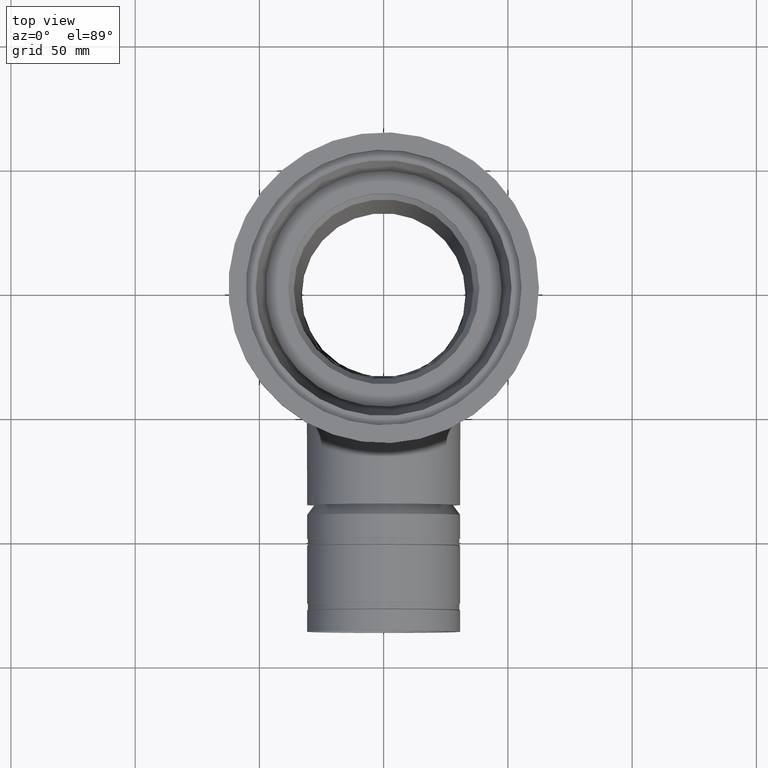
[diagram: clean part render]
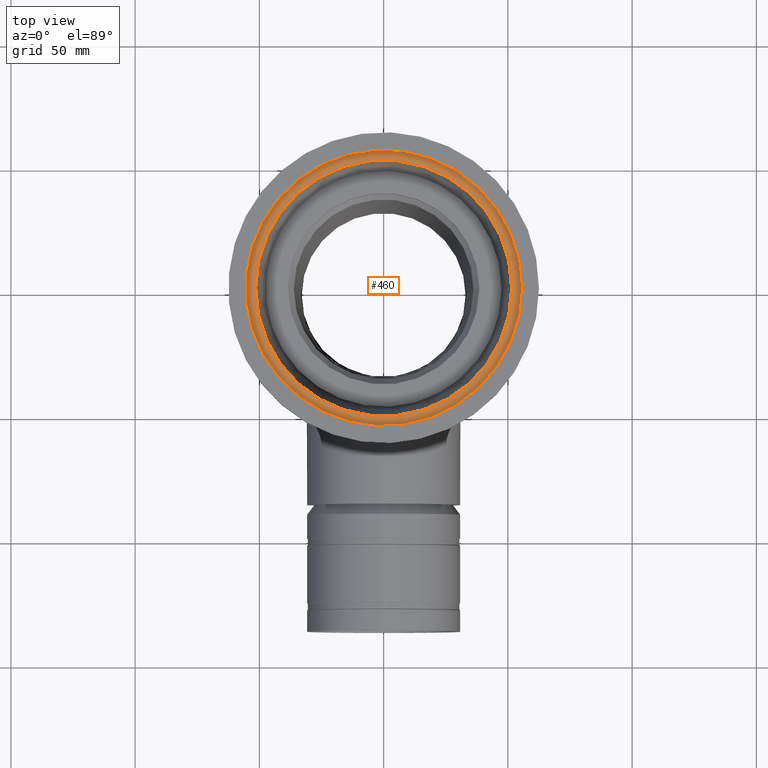
[diagram: same view with one face highlighted and labeled with its STEP entity id]
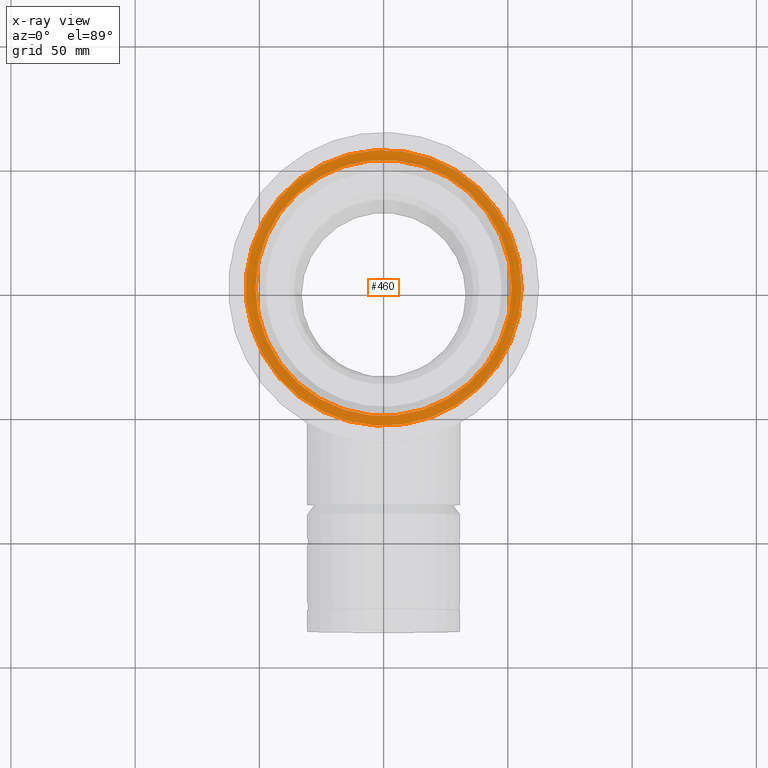
[diagram: x-ray of the same camera — body ghosted, the highlighted face saturated]
A machine part, top view. The second image highlights one B-rep face of the part: STEP entity #460.
The next image is the same camera in x-ray: the body ghosted, the highlighted face saturated — about 0% of this face is hidden behind the body in this view.
In plain terms, the highlighted planar face has unit normal (0, 0, 1).
Its self-contained STEP definition (entity closure, byte-faithful):
#22=PLANE('',#529);
#72=ORIENTED_EDGE('',*,*,#150,.T.);
#73=ORIENTED_EDGE('',*,*,#149,.F.);
#149=EDGE_CURVE('',#192,#192,#233,.T.);
#150=EDGE_CURVE('',#193,#193,#234,.T.);
#192=VERTEX_POINT('',#899);
#193=VERTEX_POINT('',#902);
#233=CIRCLE('',#528,51.5);
#234=CIRCLE('',#530,55.5);
#285=EDGE_LOOP('',(#72));
#286=EDGE_LOOP('',(#73));
#371=FACE_BOUND('',#285,.T.);
#372=FACE_BOUND('',#286,.T.);
#460=ADVANCED_FACE('',(#371,#372),#22,.T.);
#528=AXIS2_PLACEMENT_3D('',#898,#637,#638);
#529=AXIS2_PLACEMENT_3D('',#900,#639,#640);
#530=AXIS2_PLACEMENT_3D('',#901,#641,#642);
#637=DIRECTION('',(0.,0.,1.));
#638=DIRECTION('',(1.,0.,0.));
#639=DIRECTION('',(0.,0.,1.));
#640=DIRECTION('',(1.,0.,0.));
#641=DIRECTION('',(0.,0.,1.));
#642=DIRECTION('',(1.,0.,0.));
#898=CARTESIAN_POINT('',(0.,0.,-11.));
#899=CARTESIAN_POINT('',(51.5,0.,-11.));
#900=CARTESIAN_POINT('',(51.5,0.,-11.));
#901=CARTESIAN_POINT('',(0.,0.,-11.));
#902=CARTESIAN_POINT('',(55.5,0.,-11.));